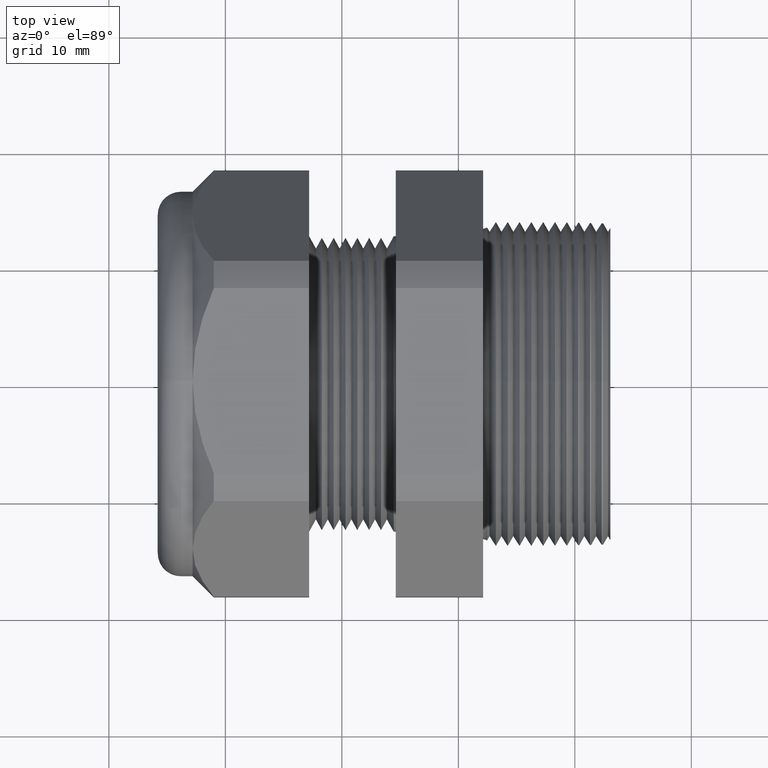
[diagram: clean part render]
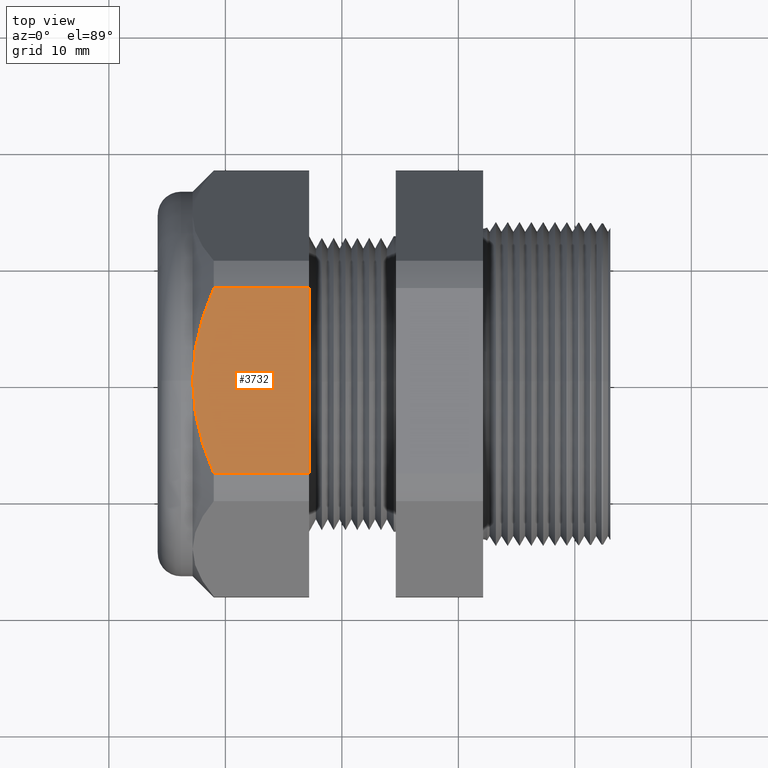
[diagram: same view with one face highlighted and labeled with its STEP entity id]
A machine part, top view. The second image highlights one B-rep face of the part: STEP entity #3732.
In plain terms, the highlighted planar face has unit normal (0, 0, 1).
Its self-contained STEP definition (entity closure, byte-faithful):
#78 = EDGE_CURVE ( 'NONE', #3697, #3622, #427, .T. ) ;
#158 = VERTEX_POINT ( 'NONE', #576 ) ;
#424 = DIRECTION ( 'NONE',  ( -1.000000000000000000, 0.0000000000000000000, 0.0000000000000000000 ) ) ;
#425 = VECTOR ( 'NONE', #424, 39.37007874015748100 ) ;
#426 = CARTESIAN_POINT ( 'NONE',  ( 0.1200000000000000900, 0.3131489262315937900, 0.6499999999999999100 ) ) ;
#427 = LINE ( 'NONE', #426, #425 ) ;
#576 = CARTESIAN_POINT ( 'NONE',  ( -1.291889763779527500, 0.0000000000000000000, 0.6499999999999999100 ) ) ;
#2073 = LINE ( 'NONE', #2133, #2132 ) ;
#2074 = CARTESIAN_POINT ( 'NONE',  ( -1.220389763779527600, -0.3131489262315937400, 0.6500000000000000200 ) ) ;
#2115 = CARTESIAN_POINT ( 'NONE',  ( -1.220389763779527600, -0.3131489262315937400, 0.6500000000000000200 ) ) ;
#2116 = CARTESIAN_POINT ( 'NONE',  ( -1.231097353238396200, -0.2884784734615908900, 0.6500000000000001300 ) ) ;
#2117 = CARTESIAN_POINT ( 'NONE',  ( -1.241013754465996000, -0.2632641016272525000, 0.6499999999999999100 ) ) ;
#2118 = CARTESIAN_POINT ( 'NONE',  ( -1.258632991635602000, -0.2119448594679247100, 0.6500000000000000200 ) ) ;
#2119 = CARTESIAN_POINT ( 'NONE',  ( -1.266256869103040900, -0.1860728161737497400, 0.6500000000000000200 ) ) ;
#2120 = CARTESIAN_POINT ( 'NONE',  ( -1.284981019806744400, -0.1077136765109595500, 0.6499999999999999100 ) ) ;
#2121 = CARTESIAN_POINT ( 'NONE',  ( -1.291889763779527500, -0.05447567936366842100, 0.6499999999999998000 ) ) ;
#2122 = CARTESIAN_POINT ( 'NONE',  ( -1.291889763779527500, 0.0000000000000000000, 0.6499999999999999100 ) ) ;
#2124 = B_SPLINE_CURVE_WITH_KNOTS ( 'NONE', 3,
 ( #2122, #2121, #2120, #2119, #2118, #2117, #2116, #2115 ),
 .UNSPECIFIED., .F., .F.,
 ( 4, 2, 2, 4 ),
 ( 0.02058130614178225300, 0.02465197266607502600, 0.02668730592822141100, 0.02872263919036779900 ),
 .UNSPECIFIED. ) ;
#2130 = CARTESIAN_POINT ( 'NONE',  ( -0.8981889763779525900, -0.3131489262315937400, 0.6500000000000000200 ) ) ;
#2131 = DIRECTION ( 'NONE',  ( -1.000000000000000000, 0.0000000000000000000, 0.0000000000000000000 ) ) ;
#2132 = VECTOR ( 'NONE', #2131, 39.37007874015748100 ) ;
#2133 = CARTESIAN_POINT ( 'NONE',  ( 0.1200000000000000900, -0.3131489262315937400, 0.6500000000000000200 ) ) ;
#2145 = CARTESIAN_POINT ( 'NONE',  ( -1.220389763779527600, 0.3131489262315937900, 0.6499999999999999100 ) ) ;
#2310 = CARTESIAN_POINT ( 'NONE',  ( -0.8981889763779525900, 0.3131489262315937900, 0.6499999999999999100 ) ) ;
#2350 = DIRECTION ( 'NONE',  ( 1.000000000000000000, 0.0000000000000000000, 0.0000000000000000000 ) ) ;
#2351 = DIRECTION ( 'NONE',  ( 0.0000000000000000000, 0.0000000000000000000, 1.000000000000000000 ) ) ;
#2352 = CARTESIAN_POINT ( 'NONE',  ( 0.1200000000000000900, -0.3131489262315937900, 0.6499999999999999100 ) ) ;
#2353 = AXIS2_PLACEMENT_3D ( 'NONE', #2352, #2351, #2350 ) ;
#2361 = PLANE ( 'NONE',  #2353 ) ;
#2364 = FACE_OUTER_BOUND ( 'NONE', #3687, .T. ) ;
#2426 = CARTESIAN_POINT ( 'NONE',  ( -1.291889763779527500, 0.0000000000000000000, 0.6499999999999999100 ) ) ;
#2427 = CARTESIAN_POINT ( 'NONE',  ( -1.291889763779527700, 0.02720867923416893000, 0.6499999999999999100 ) ) ;
#2428 = CARTESIAN_POINT ( 'NONE',  ( -1.290167062620152500, 0.05424748414116267000, 0.6500000000000001300 ) ) ;
#2429 = CARTESIAN_POINT ( 'NONE',  ( -1.283578486413453400, 0.1075827506458431600, 0.6500000000000000200 ) ) ;
#2430 = CARTESIAN_POINT ( 'NONE',  ( -1.278714961968465700, 0.1339536167969822800, 0.6500000000000001300 ) ) ;
#2431 = CARTESIAN_POINT ( 'NONE',  ( -1.266228728310345700, 0.1861735441654885100, 0.6500000000000000200 ) ) ;
#2432 = CARTESIAN_POINT ( 'NONE',  ( -1.258607658530706000, 0.2120229154253348000, 0.6499999999999998000 ) ) ;
#2433 = CARTESIAN_POINT ( 'NONE',  ( -1.241008248925571400, 0.2632758613625144600, 0.6499999999999999100 ) ) ;
#2434 = CARTESIAN_POINT ( 'NONE',  ( -1.231090024606291000, 0.2884953587440264300, 0.6499999999999999100 ) ) ;
#2435 = CARTESIAN_POINT ( 'NONE',  ( -1.220389763779527600, 0.3131489262315937900, 0.6499999999999999100 ) ) ;
#2438 = B_SPLINE_CURVE_WITH_KNOTS ( 'NONE', 3,
 ( #2435, #2434, #2433, #2432, #2431, #2430, #2429, #2428, #2427, #2426 ),
 .UNSPECIFIED., .F., .F.,
 ( 4, 2, 2, 2, 4 ),
 ( 0.01244868908973179600, 0.01448184335274441000, 0.01651499761575702200, 0.01854815187876963900, 0.02058130614178225300 ),
 .UNSPECIFIED. ) ;
#2512 = DIRECTION ( 'NONE',  ( 0.0000000000000000000, -1.000000000000000000, 0.0000000000000000000 ) ) ;
#2513 = VECTOR ( 'NONE', #2512, 39.37007874015748100 ) ;
#2514 = CARTESIAN_POINT ( 'NONE',  ( -0.8981889763779525900, 0.4995000000000000000, 0.6499999999999999100 ) ) ;
#2519 = LINE ( 'NONE', #2514, #2513 ) ;
#3595 = ORIENTED_EDGE ( 'NONE', *, *, #3602, .F. ) ;
#3597 = ORIENTED_EDGE ( 'NONE', *, *, #78, .T. ) ;
#3601 = VERTEX_POINT ( 'NONE', #2074 ) ;
#3602 = EDGE_CURVE ( 'NONE', #3603, #3601, #2073, .T. ) ;
#3603 = VERTEX_POINT ( 'NONE', #2130 ) ;
#3608 = EDGE_CURVE ( 'NONE', #158, #3601, #2124, .T. ) ;
#3622 = VERTEX_POINT ( 'NONE', #2145 ) ;
#3657 = ORIENTED_EDGE ( 'NONE', *, *, #3807, .F. ) ;
#3687 = EDGE_LOOP ( 'NONE', ( #3597, #3758, #3729, #3595, #3657 ) ) ;
#3697 = VERTEX_POINT ( 'NONE', #2310 ) ;
#3729 = ORIENTED_EDGE ( 'NONE', *, *, #3608, .T. ) ;
#3732 = ADVANCED_FACE ( 'NONE', ( #2364 ), #2361, .T. ) ;
#3754 = EDGE_CURVE ( 'NONE', #3622, #158, #2438, .T. ) ;
#3758 = ORIENTED_EDGE ( 'NONE', *, *, #3754, .T. ) ;
#3807 = EDGE_CURVE ( 'NONE', #3697, #3603, #2519, .T. ) ;